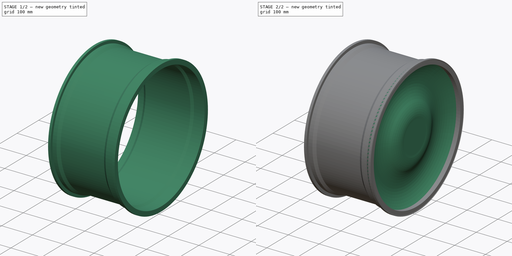
[diagram: build sequence overview — one tinted view per stage of 2, left to right]
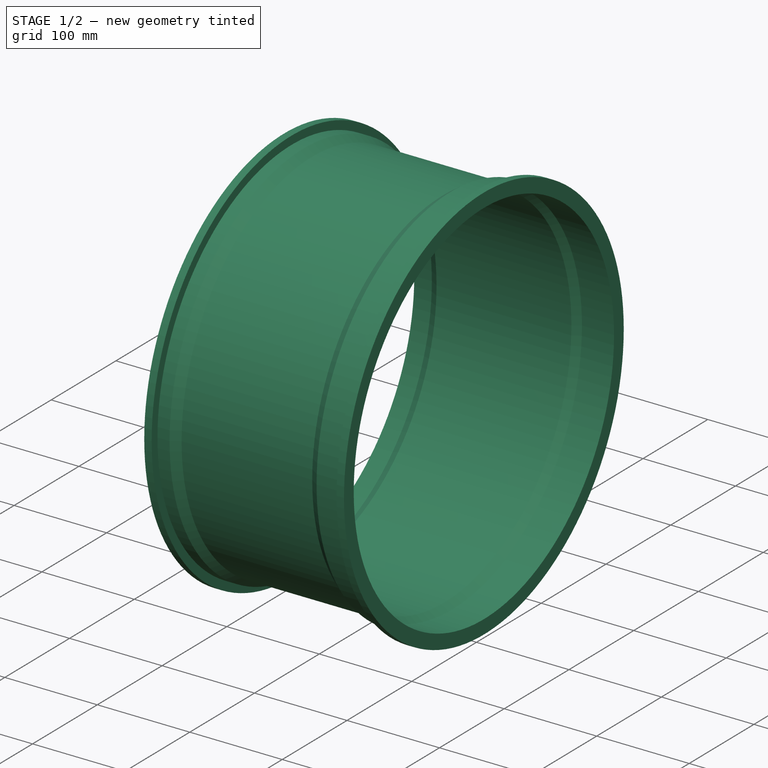
[diagram: stage 1 of 2 — iso view after this stage's code; geometry added in this stage tinted green]
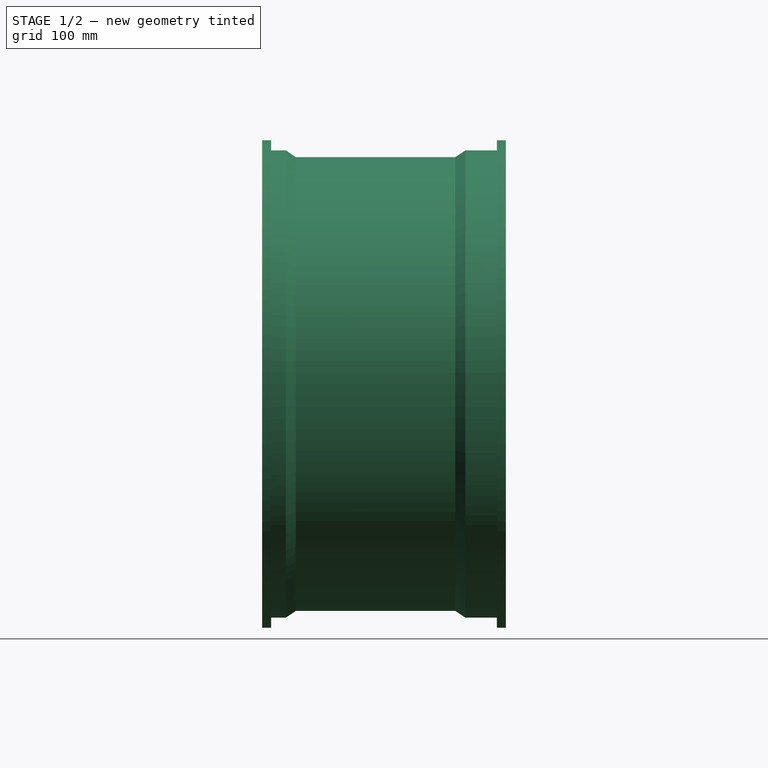
[diagram: stage 1 of 2 — front view after this stage's code; geometry added in this stage tinted green]
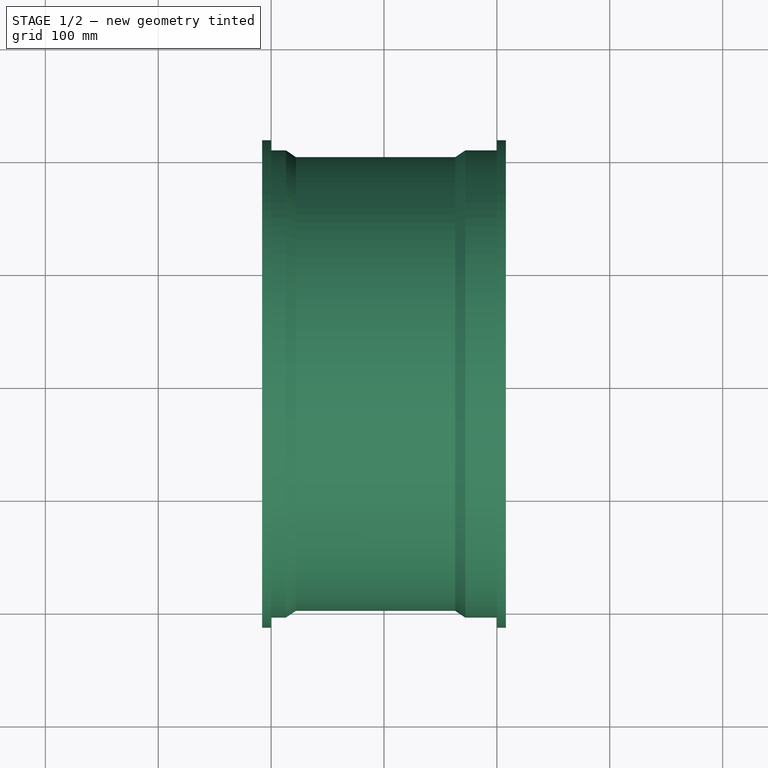
[diagram: stage 1 of 2 — top view after this stage's code; geometry added in this stage tinted green]
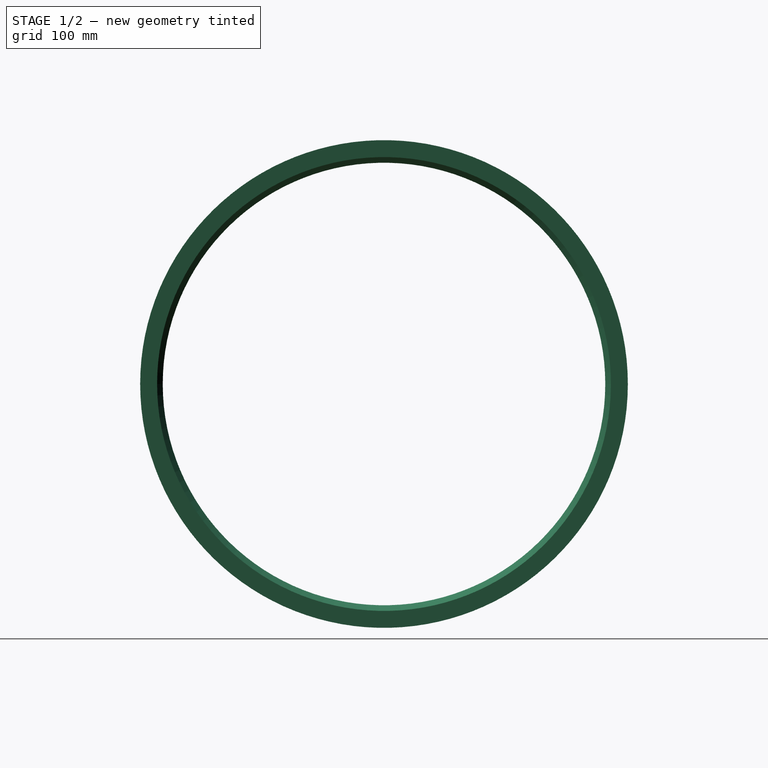
[diagram: stage 1 of 2 — right view after this stage's code; geometry added in this stage tinted green]
FCSTD DOCUMENT  (FreeCAD 0.18R4 (GitTag))
Label: CyperBandaj
License: All rights reserved
LicenseURL: http://en.wikipedia.org/wiki/All_rights_reserved
objects: Sketcher::SketchObject×2, PartDesign::Revolution×2, PartDesign::Body×1
note: 7 computed .brp shape members not serialized (recipe doc carries the construction recipe); baked Part::Feature solids carry a one-line shape summary decoded from their .brp

FEATURE [Sketcher::SketchObject] Sketch
  MapMode = 5
  Support = -> [XY_Plane]
  sketch-geometry (24):
    g0: LineSegment [constr] StartX=-108 StartY=216 StartZ=0 EndX=108 EndY=216 EndZ=0
    g1: LineSegment [constr] StartX=108 StartY=216 StartZ=0 EndX=108 EndY=-216 EndZ=0
    g2: LineSegment [constr] StartX=108 StartY=-216 StartZ=0 EndX=-108 EndY=-216 EndZ=0
    g3: LineSegment [constr] StartX=-108 StartY=-216 StartZ=0 EndX=-108 EndY=216 EndZ=0
    g4: LineSegment StartX=-28.5157 StartY=196 StartZ=0 EndX=28.5157 EndY=196 EndZ=0
    g5: LineSegment StartX=28.5157 StartY=196 StartZ=0 EndX=65.3985 EndY=196 EndZ=0
    g6: LineSegment StartX=65.3985 StartY=196 StartZ=0 EndX=73.2836 EndY=201 EndZ=0
    g7: LineSegment StartX=73.2836 StartY=201 StartZ=0 EndX=108 EndY=201 EndZ=0
    g8: LineSegment StartX=108 StartY=201 StartZ=0 EndX=108 EndY=216 EndZ=0
    g9: LineSegment StartX=108 StartY=216 StartZ=0 EndX=100 EndY=216 EndZ=0
    g10: LineSegment StartX=100 StartY=216 StartZ=0 EndX=100 EndY=207 EndZ=0
    g11: LineSegment StartX=100 StartY=207 StartZ=0 EndX=72.0305 EndY=207 EndZ=0
    g12: LineSegment StartX=72.0305 StartY=207 StartZ=0 EndX=63.161 EndY=201.026 EndZ=0
    g13: LineSegment StartX=63.161 StartY=201.026 StartZ=0 EndX=-29.8246 EndY=201.026 EndZ=0
    g14: LineSegment StartX=-29.8246 StartY=201.026 StartZ=0 EndX=-78.0999 EndY=201.026 EndZ=0
    g15: LineSegment StartX=-78.0999 StartY=201.026 StartZ=0 EndX=-86.9086 EndY=207 EndZ=0
    g16: LineSegment StartX=-86.9086 StartY=207 StartZ=0 EndX=-100 EndY=207 EndZ=0
    g17: LineSegment StartX=-100 StartY=207 StartZ=0 EndX=-100 EndY=216 EndZ=0
    g18: LineSegment StartX=-100 StartY=216 StartZ=0 EndX=-108 EndY=216 EndZ=0
    g19: LineSegment StartX=-108 StartY=216 StartZ=0 EndX=-108 EndY=201 EndZ=0
    g20: LineSegment StartX=-108 StartY=201 StartZ=0 EndX=-99.2981 EndY=201 EndZ=0
    g21: LineSegment StartX=-99.2981 StartY=201 StartZ=0 EndX=-89.0181 EndY=201 EndZ=0
    g22: LineSegment StartX=-89.0181 StartY=201 StartZ=0 EndX=-80.4514 EndY=196 EndZ=0
    g23: LineSegment StartX=-80.4514 StartY=196 StartZ=0 EndX=-28.5157 EndY=196 EndZ=0
  constraints (55):
    c: Coincident(g0,g1)
    c: Coincident(g1,g2)
    c: Coincident(g2,g3)
    c: Coincident(g3,g0)
    c: Horizontal(g2)
    c: Vertical(g3)
    c: DistanceX(g0,g0) = 216
    c: DistanceY(g1,g1) = 432
    c: Symmetric(g0,g0,g-2)
    c: Symmetric(g1,g0,g-1)
    c: Symmetric(g4,g4,g-2)
    c: Distance(g4,g0) = 20
    c: Coincident(g5,g6)
    c: Coincident(g6,g7)
    c: Coincident(g7,g8)
    c: Coincident(g8,g9)
    c: Coincident(g9,g10)
    c: Coincident(g10,g11)
    c: Coincident(g11,g12)
    c: Coincident(g12,g13)
    c: Coincident(g13,g14)
    c: Coincident(g14,g15)
    c: Coincident(g15,g16)
    c: Coincident(g16,g17)
    c: Coincident(g17,g18)
    c: Coincident(g18,g19)
    c: Coincident(g19,g20)
    c: Coincident(g20,g21)
    c: Coincident(g21,g22)
    c: Coincident(g22,g23)
    c: Coincident(g4,g23)
    c: Horizontal(g23)
    c: Horizontal(g14)
    c: Horizontal(g13)
    c: Horizontal(g5)
    c: Horizontal(g7)
    c: Horizontal(g11)
    c: Vertical(g8)
    c: Vertical(g10)
    c: Horizontal(g16)
    c: Horizontal(g21)
    c: Horizontal(g20)
    c: Vertical(g17)
    c: Vertical(g19)
    c: Horizontal(g9)
    c: Horizontal(g18)
    c: DistanceX(g18,g18) = 8
    c: DistanceY(g19,g18) = 15
    c: Coincident(g0,g18)
    c: DistanceY(g16,g17) = 9
    c: DistanceY(g8,g8) = 15
    c: DistanceX(g9,g9) = 8
    c: Coincident(g0,g8)
    c: DistanceY(g10,g9) = 9
    c: Coincident(g5,g4)
FEATURE [PartDesign::Revolution] Revolution
  Angle = 360
  Axis = (1,0,0)
  Base = (0,0,0)
  Profile = -> Sketch
  ReferenceAxis = -> Sketch [H_Axis]
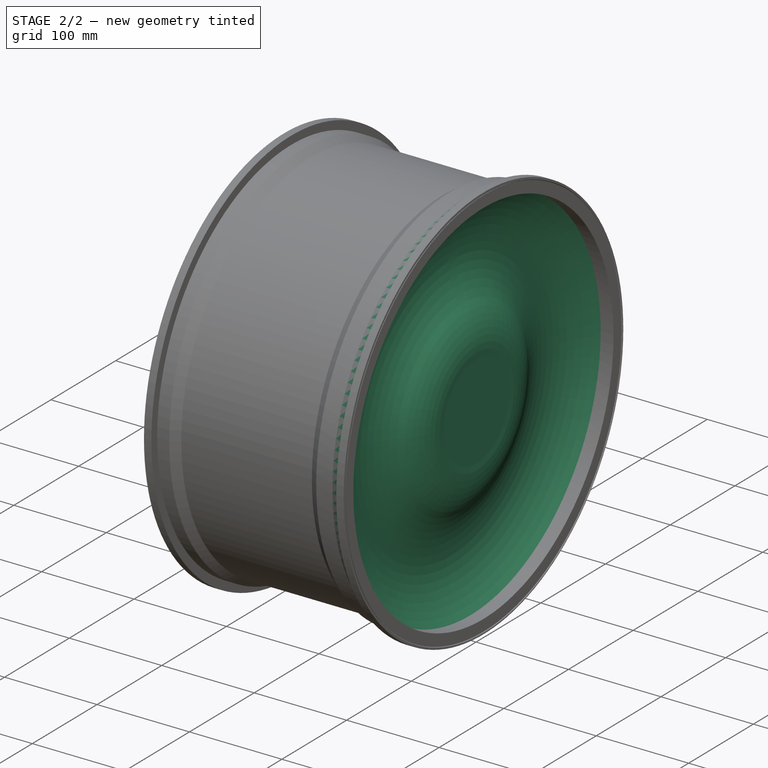
[diagram: stage 2 of 2 — iso view after this stage's code; geometry added in this stage tinted green]
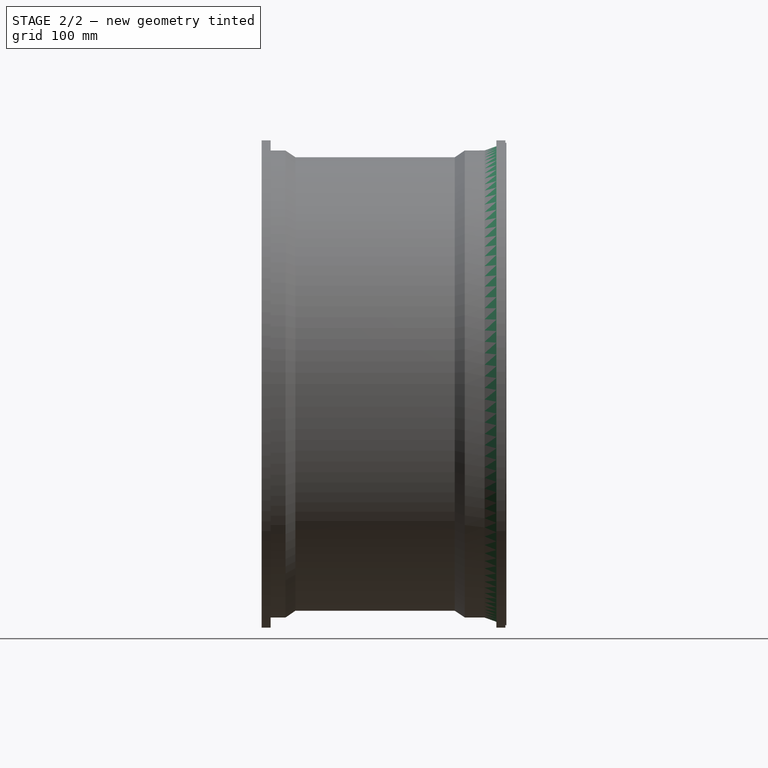
[diagram: stage 2 of 2 — front view after this stage's code; geometry added in this stage tinted green]
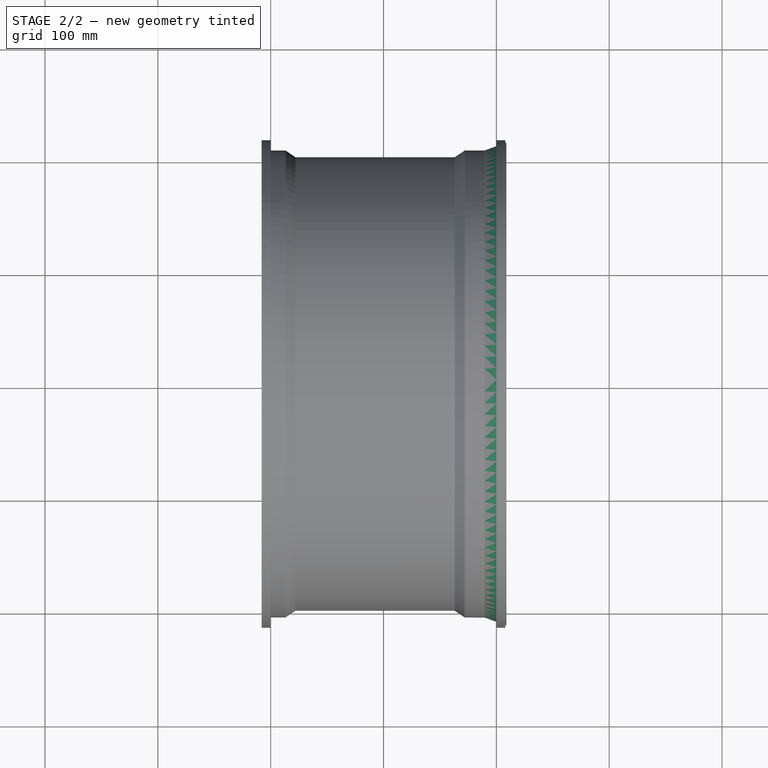
[diagram: stage 2 of 2 — top view after this stage's code; geometry added in this stage tinted green]
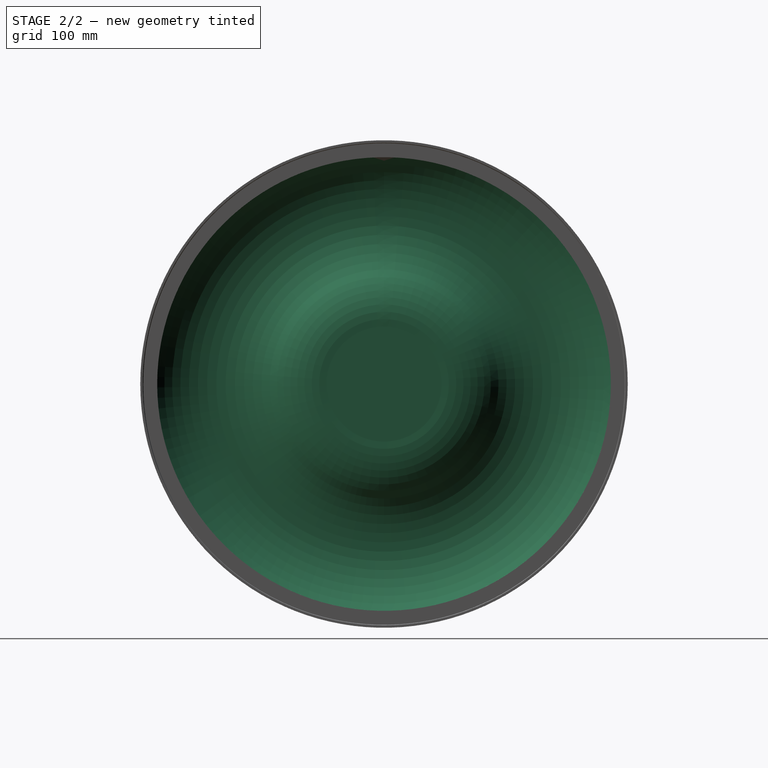
[diagram: stage 2 of 2 — right view after this stage's code; geometry added in this stage tinted green]
FEATURE [Sketcher::SketchObject] Sketch001
  MapMode = 5
  Placement = pos=(0,0,0) rot=(1,0,0;1.5708rad)
  Support = -> [XZ_Plane]
  sketch-geometry (9):
    g0: LineSegment StartX=0 StartY=0 StartZ=0 EndX=100.387 EndY=0 EndZ=0
    g1: LineSegment StartX=100.387 StartY=0 StartZ=0 EndX=100.387 EndY=50.9729 EndZ=0
    g2: ArcOfCircle CenterX=31.7099 CenterY=57.6295 CenterZ=0 NormalX=0 NormalY=0 NormalZ=1 AngleXU=0 Radius=68.999 StartAngle=6.18656 EndAngle=6.84936
    g3: ArcOfCircle CenterX=155.625 CenterY=145.364 CenterZ=0 NormalX=0 NormalY=0 NormalZ=1 AngleXU=0 Radius=82.9884 StartAngle=2.16977 EndAngle=3.79917
    g4: LineSegment StartX=108.836 StartY=213.905 StartZ=0 EndX=62.6939 EndY=197.376 EndZ=0
    g5: LineSegment StartX=62.6939 StartY=197.376 StartZ=0 EndX=29.6366 EndY=197.376 EndZ=0
    g6: ArcOfCircle CenterX=496.675 CenterY=190.078 CenterZ=0 NormalX=0 NormalY=0 NormalZ=1 AngleXU=0 Radius=467.096 StartAngle=3.12597 EndAngle=3.44761
    g7: LineSegment StartX=51.28 StartY=49.36 StartZ=0 EndX=0 EndY=49.36 EndZ=0
    g8: LineSegment StartX=0 StartY=49.36 StartZ=0 EndX=0 EndY=0 EndZ=0
  constraints (17):
    c: Coincident(g0,g1)
    c: Coincident(g2,g1)
    c: Vertical(g1)
    c: Horizontal(g0)
    c: Coincident(g4,g5)
    c: Horizontal(g5)
    c: Coincident(g5,g6)
    c: Coincident(g7,g8)
    c: Coincident(g6,g7)
    c: Coincident(g8,g0)
    c: Coincident(g0,g-1)
    c: Horizontal(g7)
    c: Vertical(g8)
    c: DistanceX(g7,g7) = 51.28
    c: DistanceY(g8,g8) = 49.36
    c: Coincident(g4,g3)
    c: Coincident(g2,g3)
FEATURE [PartDesign::Revolution] Revolution001
  Angle = 360
  Axis = (1,0,0)
  Base = (0,0,0)
  BaseFeature = -> Revolution
  Profile = -> Sketch001
  ReferenceAxis = -> Sketch001 [H_Axis]
FEATURE [PartDesign::Body] Body
  Group = -> [Sketch,Revolution,Sketch001,Revolution001]
  Origin = -> Origin
  Tip = -> Revolution001
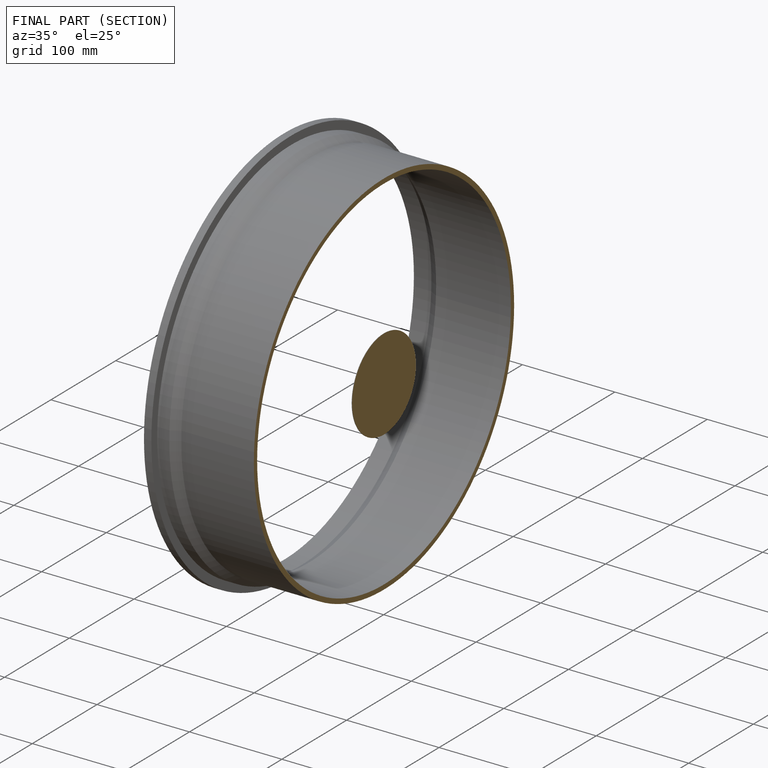
[diagram: finished part — half-section view (interior)]
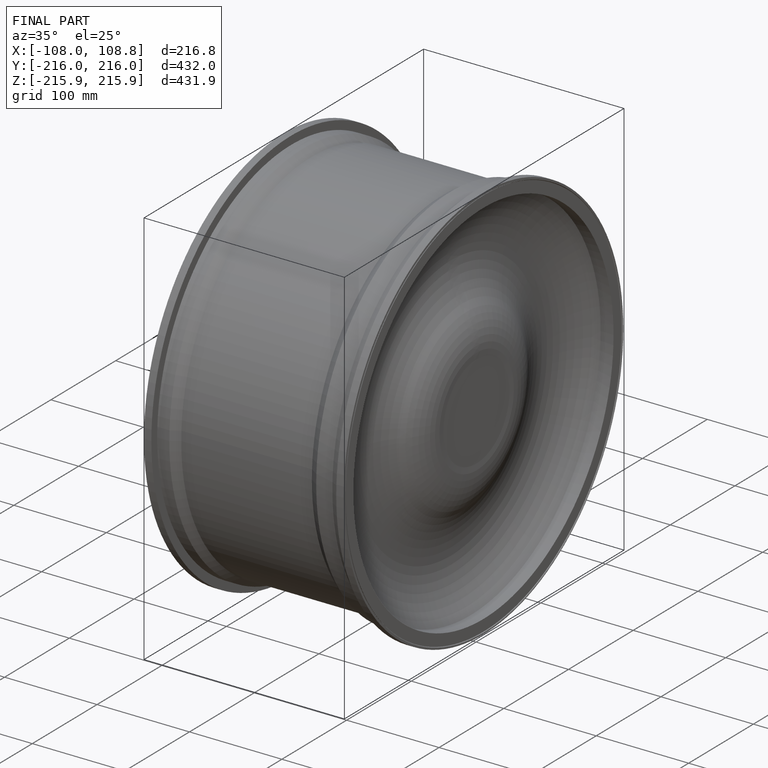
[diagram: finished part — iso view with bounding-box wireframe]
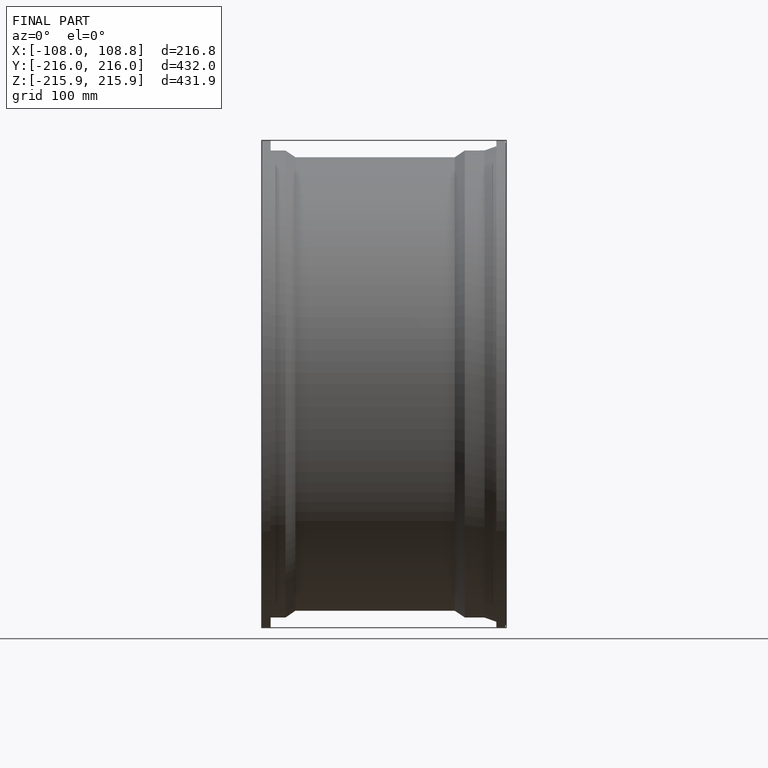
[diagram: finished part — front view with bounding-box wireframe]
